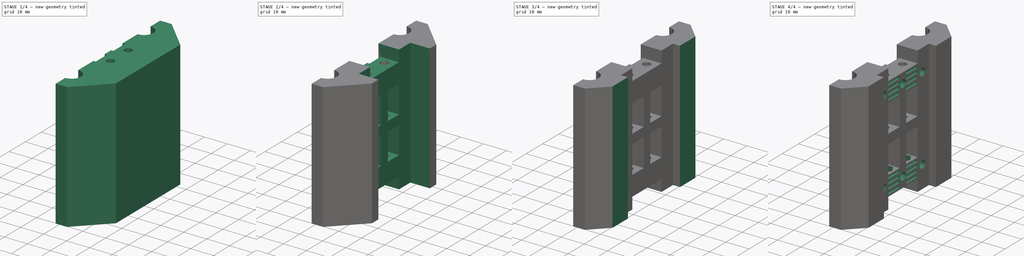
[diagram: build sequence overview — one tinted view per stage of 4, left to right]
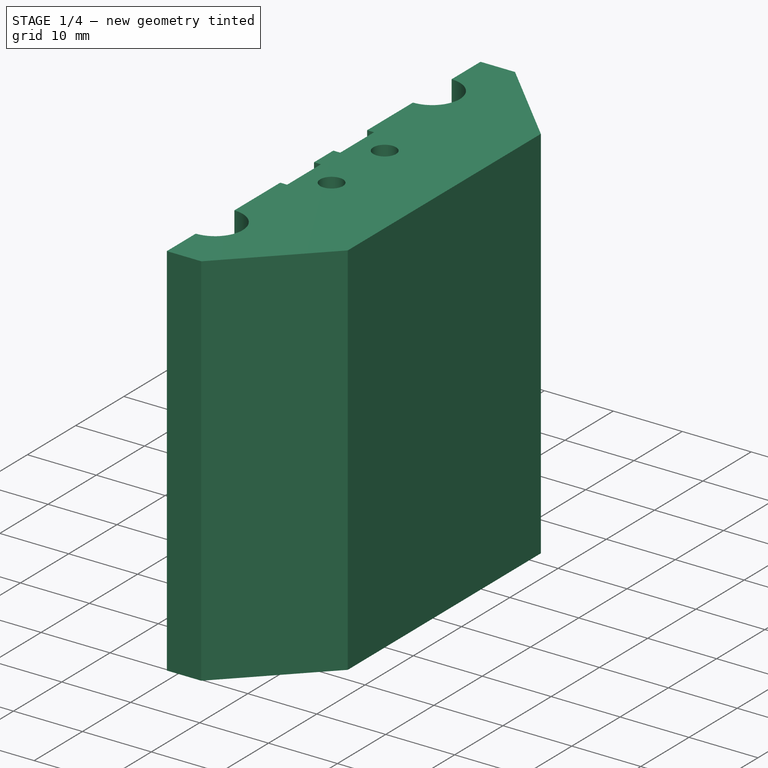
[diagram: stage 1 of 4 — iso view after this stage's code; geometry added in this stage tinted green]
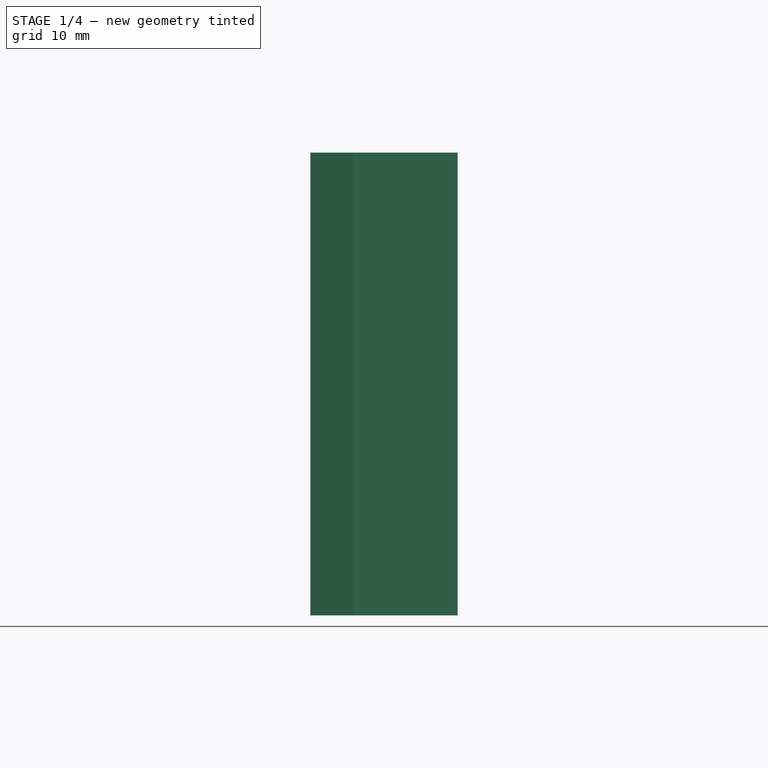
[diagram: stage 1 of 4 — front view after this stage's code; geometry added in this stage tinted green]
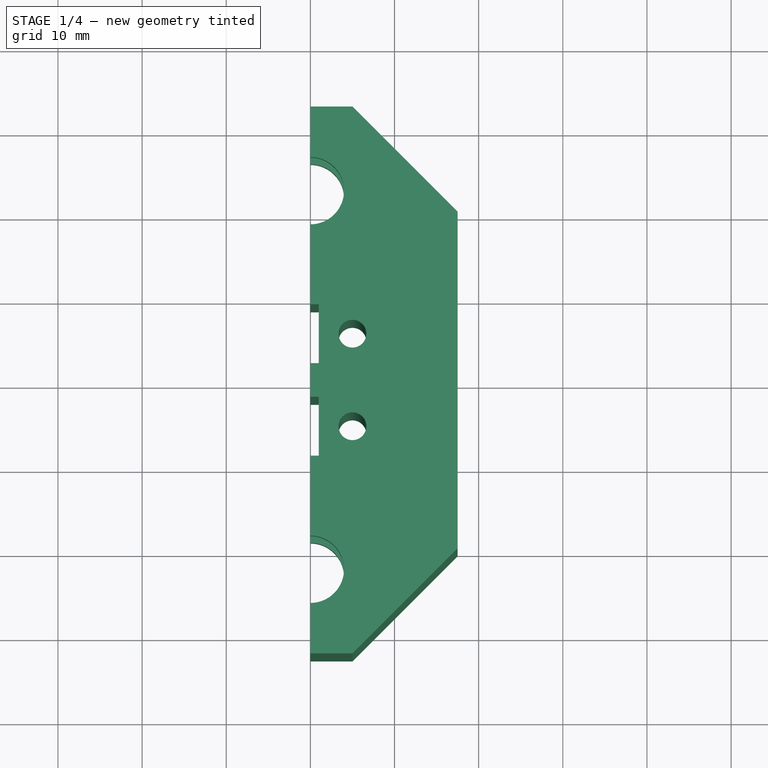
[diagram: stage 1 of 4 — top view after this stage's code; geometry added in this stage tinted green]
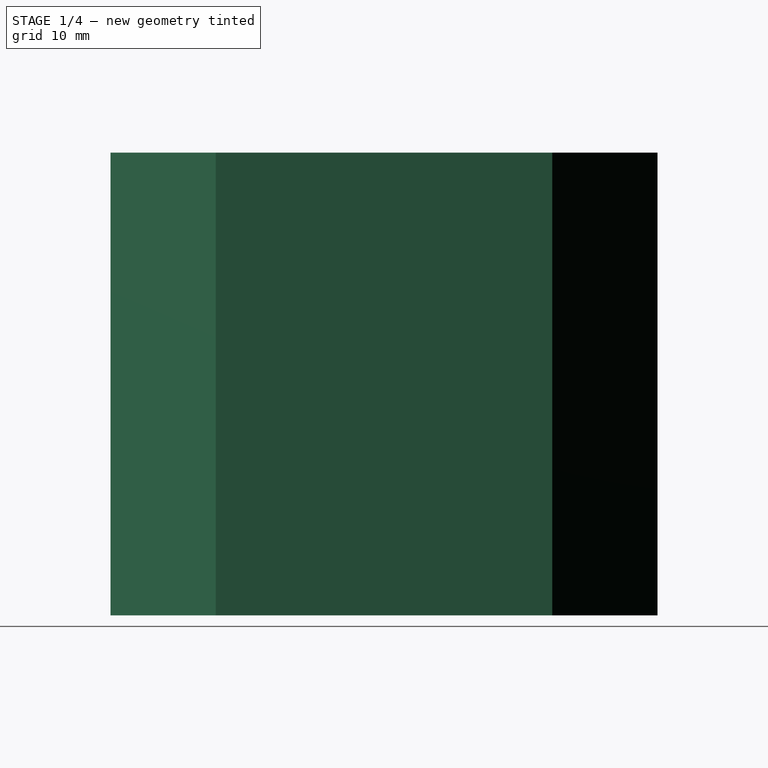
[diagram: stage 1 of 4 — right view after this stage's code; geometry added in this stage tinted green]
FCSTD DOCUMENT  (FreeCAD 0.19R20209 (Git))
Label: X-Axel-Printhead-Base_0100
License: Creative Commons Attribution
LicenseURL: http://creativecommons.org/licenses/by/4.0/
objects: Sketcher::SketchObject×11, PartDesign::Pocket×10, PartDesign::Plane×3, PartDesign::Pad×1, PartDesign::Body×1
note: 37 computed .brp shape members not serialized (recipe doc carries the construction recipe); baked Part::Feature solids carry a one-line shape summary decoded from their .brp

FEATURE [Sketcher::SketchObject] Sketch
  MapMode = 5
  Support = -> [XY_Plane]
  expr: Constraints[16] = 35 / 2
  sketch-geometry (14):
    g0: Circle [constr] CenterX=0 CenterY=22.5 CenterZ=0 NormalX=0 NormalY=0 NormalZ=1 AngleXU=0 Radius=7.6
    g1: Circle [constr] CenterX=0 CenterY=-22.5 CenterZ=0 NormalX=0 NormalY=0 NormalZ=1 AngleXU=0 Radius=7.6
    g2: LineSegment StartX=0 StartY=32.5 StartZ=0 EndX=5 EndY=32.5 EndZ=0
    g3: LineSegment StartX=5 StartY=32.5 StartZ=0 EndX=17.5 EndY=20 EndZ=0
    g4: LineSegment StartX=17.5 StartY=20 StartZ=0 EndX=17.5 EndY=-20 EndZ=0
    g5: LineSegment StartX=17.5 StartY=-20 StartZ=0 EndX=5 EndY=-32.5 EndZ=0
    g6: LineSegment StartX=5 StartY=-32.5 StartZ=0 EndX=0 EndY=-32.5 EndZ=0
    g7: ArcOfCircle CenterX=0 CenterY=22.5 CenterZ=0 NormalX=0 NormalY=0 NormalZ=1 AngleXU=0 Radius=4 StartAngle=4.71239 EndAngle=7.85398
    g8: ArcOfCircle CenterX=0 CenterY=-22.5 CenterZ=0 NormalX=0 NormalY=0 NormalZ=1 AngleXU=0 Radius=4 StartAngle=4.71239 EndAngle=7.85398
    g9: LineSegment StartX=0 StartY=32.5 StartZ=0 EndX=1.2e-15 EndY=26.5 EndZ=0
    g10: LineSegment StartX=-7e-16 StartY=18.5 StartZ=0 EndX=1.2e-15 EndY=-18.5 EndZ=0
    g11: LineSegment StartX=-7e-16 StartY=-26.5 StartZ=0 EndX=0 EndY=-32.5 EndZ=0
    g12: Circle CenterX=5 CenterY=5.5 CenterZ=0 NormalX=0 NormalY=0 NormalZ=1 AngleXU=0 Radius=1.65
    g13: Circle CenterX=5 CenterY=-5.5 CenterZ=0 NormalX=0 NormalY=0 NormalZ=1 AngleXU=0 Radius=1.65
  constraints (36):
    c: Symmetric(g1,g0,g-1)
    c: Equal(g0,g1)
    c: Diameter(g0) = 15.2
    c: PointOnObject(g0,g-2)
    c: DistanceY(g1,g0) = 45
    c: Horizontal(g2)
    c: Coincident(g2,g3)
    c: Coincident(g3,g4)
    c: Coincident(g4,g5)
    c: Coincident(g5,g6)
    c: Horizontal(g6)
    c: Symmetric(g2,g6,g-1)
    c: PointOnObject(g2,g-2)
    c: Equal(g6,g2)
    c: DistanceX(g2,g2) = 5
    c: Symmetric(g4,g3,g-1)
    c: DistanceX(g-1,g3) = 17.5
    c: DistanceY(g6,g2) = 65
    c: Equal(g8,g7)
    c: Diameter(g7) = 8
    c: Coincident(g7,g0)
    c: Coincident(g8,g1)
    c: Coincident(g11,g6)
    c: Coincident(g9,g2)
    c: Tangent(g9,g10)
    c: Coincident(g7,g10)
    c: Coincident(g7,g9)
    c: Tangent(g10,g11)
    c: Coincident(g8,g11)
    c: Coincident(g8,g10)
    c: Angle(g9,g3) = 0.785398
    c: Equal(g12,g13)
    c: Symmetric(g12,g13,g-1)
    c: DistanceY(g13,g12) = 11
    c: DistanceX(g-1,g12) = 5
    c: Diameter(g12) = 3.3
FEATURE [PartDesign::Pad] Pad
  Length = 55
  Length2 = 100
  Midplane = true
  Profile = -> Sketch
  Refine = true
  Type = 0
FEATURE [Sketcher::SketchObject] Sketch001
  ExternalGeometry = -> [Pad]
  MapMode = 5
  Support = -> [XY_Plane]
  sketch-geometry (2):
    g0: Circle CenterX=0 CenterY=22.5 CenterZ=0 NormalX=0 NormalY=0 NormalZ=1 AngleXU=0 Radius=7.65
    g1: Circle CenterX=0 CenterY=-22.5 CenterZ=0 NormalX=0 NormalY=0 NormalZ=1 AngleXU=0 Radius=7.65
  constraints (4):
    c: Equal(g1,g0)
    c: Diameter(g0) = 15.3
    c: Coincident(g-3,g0)
    c: Coincident(g1,g-4)
FEATURE [PartDesign::Pocket] Pocket
  BaseFeature = -> Pad
  Length = 45.4
  Length2 = 100
  Midplane = true
  Profile = -> Sketch001
  Refine = true
  Type = 0
FEATURE [Sketcher::SketchObject] Sketch002
  MapMode = 5
  Support = -> [XY_Plane]
  sketch-geometry (10):
    g0: LineSegment StartX=-1 StartY=9 StartZ=0 EndX=1 EndY=9 EndZ=0
    g1: LineSegment StartX=1 StartY=9 StartZ=0 EndX=1 EndY=2 EndZ=0
    g2: LineSegment StartX=1 StartY=2 StartZ=0 EndX=-1 EndY=2 EndZ=0
    g3: LineSegment StartX=-1 StartY=2 StartZ=0 EndX=-1 EndY=9 EndZ=0
    g4: LineSegment StartX=-1 StartY=-2 StartZ=0 EndX=1 EndY=-2 EndZ=0
    g5: LineSegment StartX=1 StartY=-2 StartZ=0 EndX=1 EndY=-9 EndZ=0
    g6: LineSegment StartX=1 StartY=-9 StartZ=0 EndX=-1 EndY=-9 EndZ=0
    g7: LineSegment StartX=-1 StartY=-9 StartZ=0 EndX=-1 EndY=-2 EndZ=0
    g8: GeomPoint X=0 Y=5.5 Z=0
    g9: GeomPoint X=0 Y=-5.5 Z=0
  constraints (25):
    c: Coincident(g0,g1)
    c: Coincident(g1,g2)
    c: Coincident(g2,g3)
    c: Coincident(g3,g0)
    c: Horizontal(g0)
    c: Horizontal(g2)
    c: Vertical(g1)
    c: Vertical(g3)
    c: Coincident(g4,g5)
    c: Coincident(g5,g6)
    c: Coincident(g6,g7)
    c: Coincident(g7,g4)
    c: Horizontal(g4)
    c: Horizontal(g6)
    c: Vertical(g5)
    c: Vertical(g7)
    c: Equal(g5,g1)
    c: DistanceY(g3,g3) = 7
    c: Symmetric(g2,g4,g-1)
    c: DistanceY(g4,g2) = 4
    c: Equal(g0,g4)
    c: DistanceX(g6,g6) = 2
    c: Symmetric(g5,g4,g9)
    c: Symmetric(g0,g1,g8)
    c: Vertical(g9,g-1)
FEATURE [PartDesign::Pocket] Pocket001
  BaseFeature = -> Pocket
  Length = 5
  Length2 = 100
  Midplane = true
  Profile = -> Sketch002
  Refine = true
  Type = 1
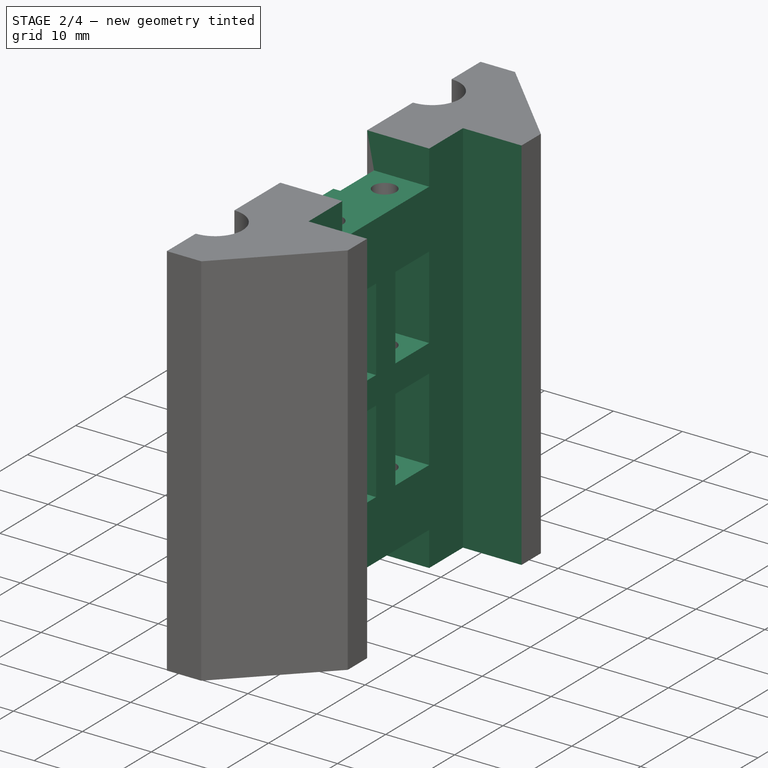
[diagram: stage 2 of 4 — iso view after this stage's code; geometry added in this stage tinted green]
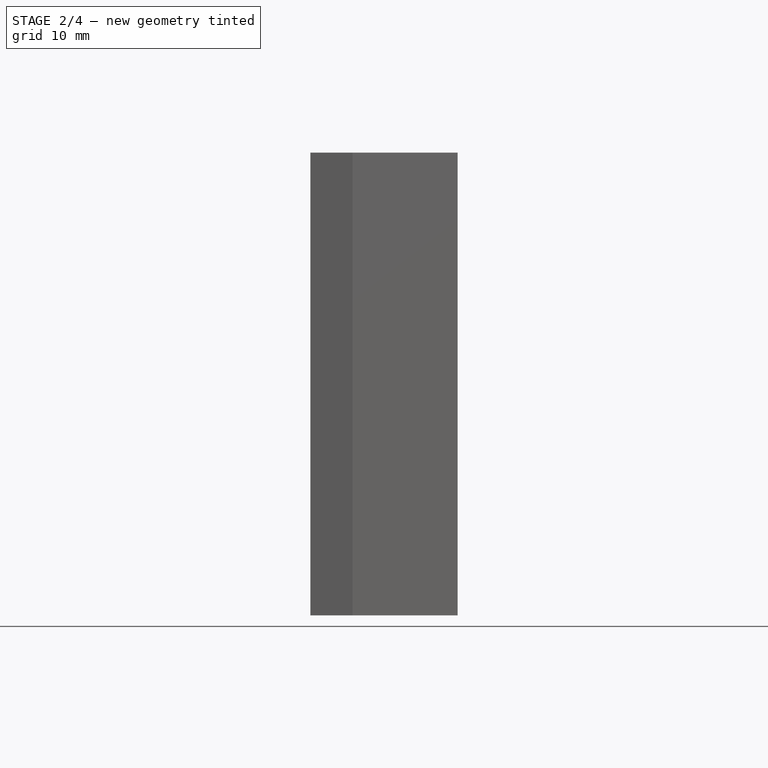
[diagram: stage 2 of 4 — front view after this stage's code; geometry added in this stage tinted green]
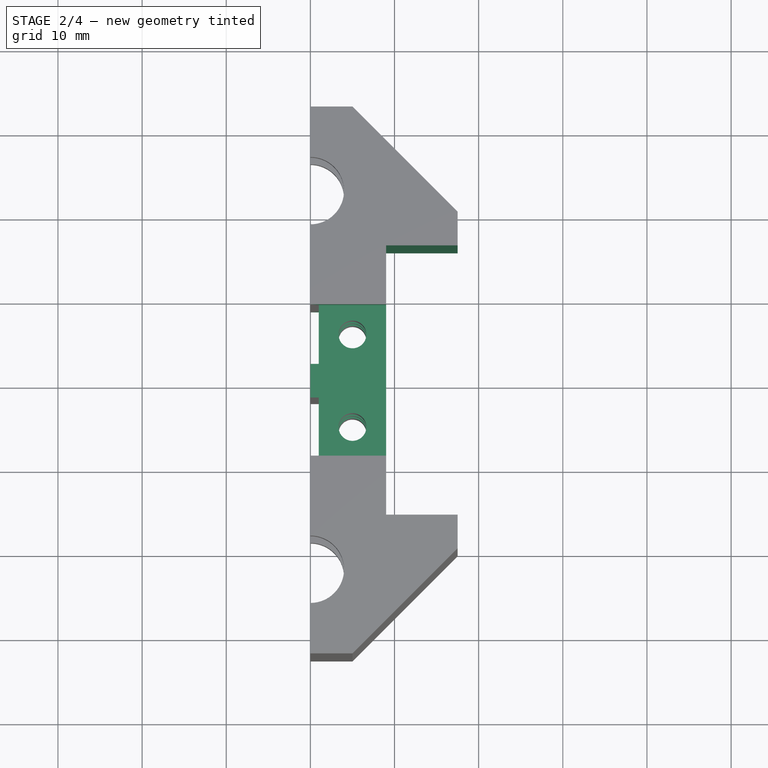
[diagram: stage 2 of 4 — top view after this stage's code; geometry added in this stage tinted green]
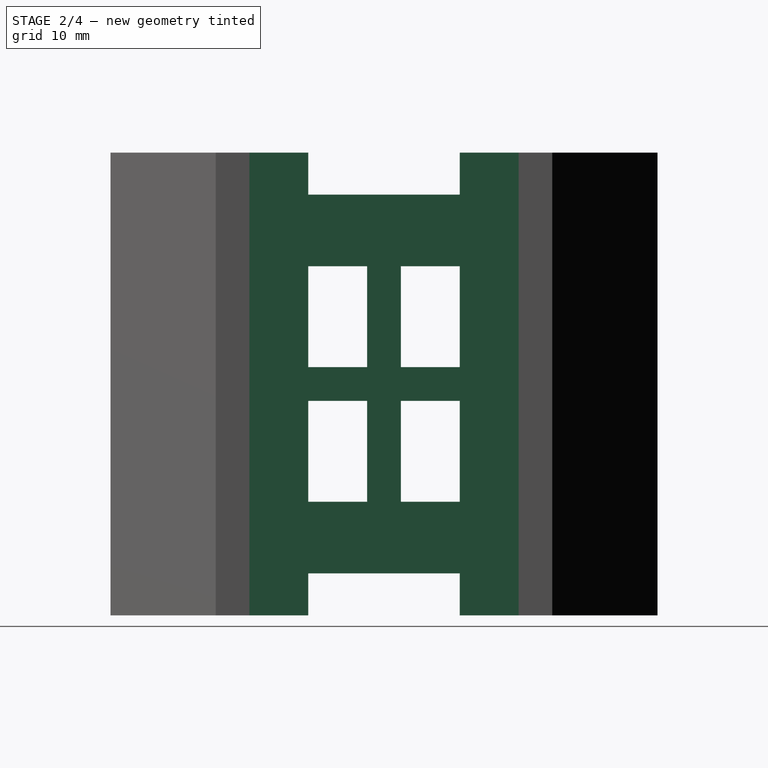
[diagram: stage 2 of 4 — right view after this stage's code; geometry added in this stage tinted green]
FEATURE [Sketcher::SketchObject] Sketch003
  MapMode = 5
  Placement = pos=(0,0,0) rot=(0.57735,0.57735,0.57735;2.0944rad)
  Support = -> [YZ_Plane]
  sketch-geometry (8):
    g0: LineSegment StartX=-9 StartY=27.5 StartZ=0 EndX=9 EndY=27.5 EndZ=0
    g1: LineSegment StartX=9 StartY=27.5 StartZ=0 EndX=9 EndY=22.5 EndZ=0
    g2: LineSegment StartX=9 StartY=22.5 StartZ=0 EndX=-9 EndY=22.5 EndZ=0
    g3: LineSegment StartX=-9 StartY=22.5 StartZ=0 EndX=-9 EndY=27.5 EndZ=0
    g4: LineSegment StartX=-9 StartY=-22.5 StartZ=0 EndX=9 EndY=-22.5 EndZ=0
    g5: LineSegment StartX=9 StartY=-22.5 StartZ=0 EndX=9 EndY=-27.5 EndZ=0
    g6: LineSegment StartX=9 StartY=-27.5 StartZ=0 EndX=-9 EndY=-27.5 EndZ=0
    g7: LineSegment StartX=-9 StartY=-27.5 StartZ=0 EndX=-9 EndY=-22.5 EndZ=0
  constraints (22):
    c: Coincident(g0,g1)
    c: Coincident(g1,g2)
    c: Coincident(g2,g3)
    c: Coincident(g3,g0)
    c: Horizontal(g0)
    c: Vertical(g1)
    c: Vertical(g3)
    c: Symmetric(g1,g2,g-2)
    c: DistanceX(g0,g0) = 18
    c: DistanceY(g1,g1) = 5
    c: Coincident(g4,g5)
    c: Coincident(g5,g6)
    c: Coincident(g6,g7)
    c: Coincident(g7,g4)
    c: Horizontal(g6)
    c: Vertical(g5)
    c: Vertical(g7)
    c: Symmetric(g4,g4,g-2)
    c: Equal(g4,g2)
    c: Equal(g5,g1)
    c: Symmetric(g1,g4,g-1)
    c: DistanceY(g4,g2) = 45
FEATURE [PartDesign::Pocket] Pocket002
  BaseFeature = -> Pocket001
  Length = 5
  Length2 = 100
  Midplane = true
  Profile = -> Sketch003
  Refine = true
  Type = 1
FEATURE [Sketcher::SketchObject] Sketch004
  MapMode = 5
  Support = -> [XY_Plane]
  sketch-geometry (4):
    g0: LineSegment StartX=9 StartY=16 StartZ=0 EndX=32.804 EndY=16 EndZ=0
    g1: LineSegment StartX=32.804 StartY=16 StartZ=0 EndX=32.804 EndY=-16 EndZ=0
    g2: LineSegment StartX=32.804 StartY=-16 StartZ=0 EndX=9 EndY=-16 EndZ=0
    g3: LineSegment StartX=9 StartY=-16 StartZ=0 EndX=9 EndY=16 EndZ=0
  constraints (10):
    c: Coincident(g0,g1)
    c: Coincident(g1,g2)
    c: Coincident(g2,g3)
    c: Coincident(g3,g0)
    c: Horizontal(g0)
    c: Horizontal(g2)
    c: Vertical(g3)
    c: DistanceX(g-1,g2) = 9
    c: DistanceY(g1,g1) = 32
    c: Symmetric(g0,g1,g-1)
FEATURE [PartDesign::Pocket] Pocket003
  BaseFeature = -> Pocket002
  Length = 5
  Length2 = 100
  Midplane = true
  Profile = -> Sketch004
  Refine = true
  Type = 1
FEATURE [Sketcher::SketchObject] Sketch005
  MapMode = 5
  Placement = pos=(0,0,0) rot=(0.57735,0.57735,0.57735;2.0944rad)
  Support = -> [YZ_Plane]
  sketch-geometry (16):
    g0: LineSegment StartX=-9 StartY=14 StartZ=0 EndX=-2 EndY=14 EndZ=0
    g1: LineSegment StartX=-2 StartY=14 StartZ=0 EndX=-2 EndY=2 EndZ=0
    g2: LineSegment StartX=-2 StartY=2 StartZ=0 EndX=-9 EndY=2 EndZ=0
    g3: LineSegment StartX=-9 StartY=2 StartZ=0 EndX=-9 EndY=14 EndZ=0
    g4: LineSegment StartX=-9 StartY=-2 StartZ=0 EndX=-2 EndY=-2 EndZ=0
    g5: LineSegment StartX=-2 StartY=-2 StartZ=0 EndX=-2 EndY=-14 EndZ=0
    g6: LineSegment StartX=-2 StartY=-14 StartZ=0 EndX=-9 EndY=-14 EndZ=0
    g7: LineSegment StartX=-9 StartY=-14 StartZ=0 EndX=-9 EndY=-2 EndZ=0
    g8: LineSegment StartX=2 StartY=14 StartZ=0 EndX=9 EndY=14 EndZ=0
    g9: LineSegment StartX=9 StartY=14 StartZ=0 EndX=9 EndY=2 EndZ=0
    g10: LineSegment StartX=9 StartY=2 StartZ=0 EndX=2 EndY=2 EndZ=0
    g11: LineSegment StartX=2 StartY=2 StartZ=0 EndX=2 EndY=14 EndZ=0
    g12: LineSegment StartX=2 StartY=-2 StartZ=0 EndX=9 EndY=-2 EndZ=0
    g13: LineSegment StartX=9 StartY=-2 StartZ=0 EndX=9 EndY=-14 EndZ=0
    g14: LineSegment StartX=9 StartY=-14 StartZ=0 EndX=2 EndY=-14 EndZ=0
    g15: LineSegment StartX=2 StartY=-14 StartZ=0 EndX=2 EndY=-2 EndZ=0
  constraints (45):
    c: Coincident(g0,g1)
    c: Coincident(g1,g2)
    c: Coincident(g2,g3)
    c: Coincident(g3,g0)
    c: Horizontal(g0)
    c: Horizontal(g2)
    c: Vertical(g1)
    c: Vertical(g3)
    c: Coincident(g4,g5)
    c: Coincident(g5,g6)
    c: Coincident(g6,g7)
    c: Coincident(g7,g4)
    c: Horizontal(g4)
    c: Horizontal(g6)
    c: Vertical(g5)
    c: Vertical(g7)
    c: Coincident(g8,g9)
    c: Coincident(g9,g10)
    c: Coincident(g10,g11)
    c: Coincident(g11,g8)
    c: Horizontal(g8)
    c: Horizontal(g10)
    c: Vertical(g9)
    c: Vertical(g11)
    c: Coincident(g12,g13)
    c: Coincident(g13,g14)
    c: Coincident(g14,g15)
    c: Coincident(g15,g12)
    c: Horizontal(g12)
    c: Horizontal(g14)
    c: Vertical(g13)
    c: Vertical(g15)
    c: Equal(g5,g13)
    c: Equal(g13,g9)
    c: Equal(g9,g1)
    c: Equal(g0,g8)
    c: Equal(g8,g12)
    c: Equal(g12,g4)
    c: DistanceX(g0,g0) = 7
    c: DistanceY(g3,g3) = 12
    c: Symmetric(g1,g4,g-1)
    c: Symmetric(g10,g12,g-1)
    c: Symmetric(g12,g4,g-2)
    c: DistanceY(g4,g1) = 4
    c: DistanceX(g1,g10) = 4
FEATURE [PartDesign::Pocket] Pocket004
  BaseFeature = -> Pocket003
  Length = 5
  Length2 = 100
  Profile = -> Sketch005
  Refine = true
  Reversed = true
  Type = 1
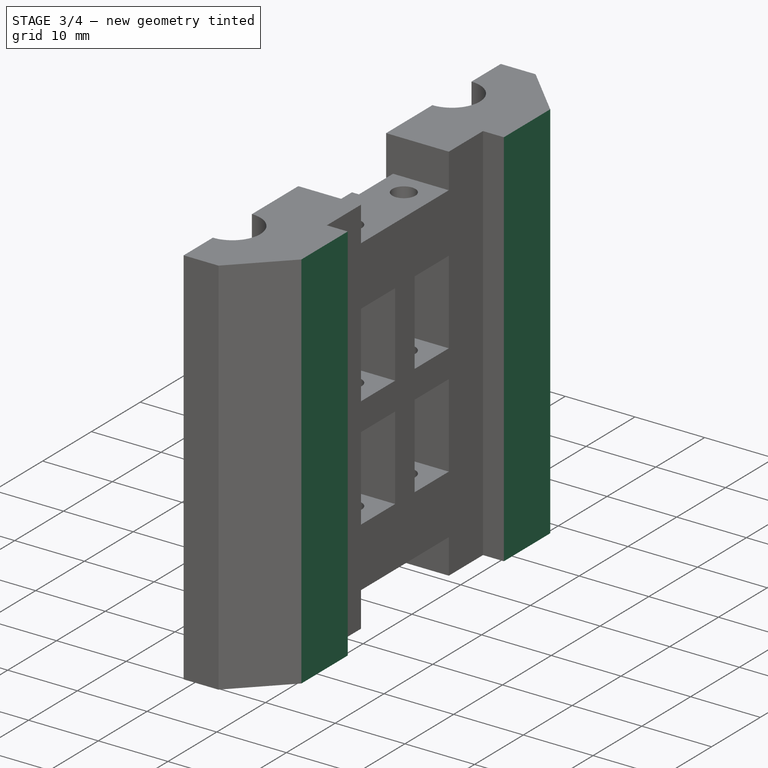
[diagram: stage 3 of 4 — iso view after this stage's code; geometry added in this stage tinted green]
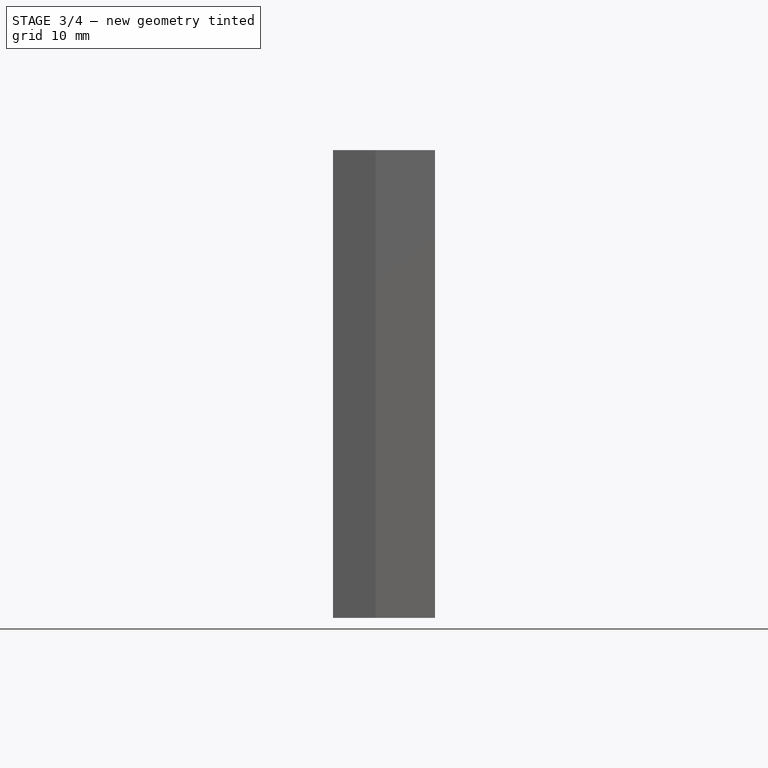
[diagram: stage 3 of 4 — front view after this stage's code; geometry added in this stage tinted green]
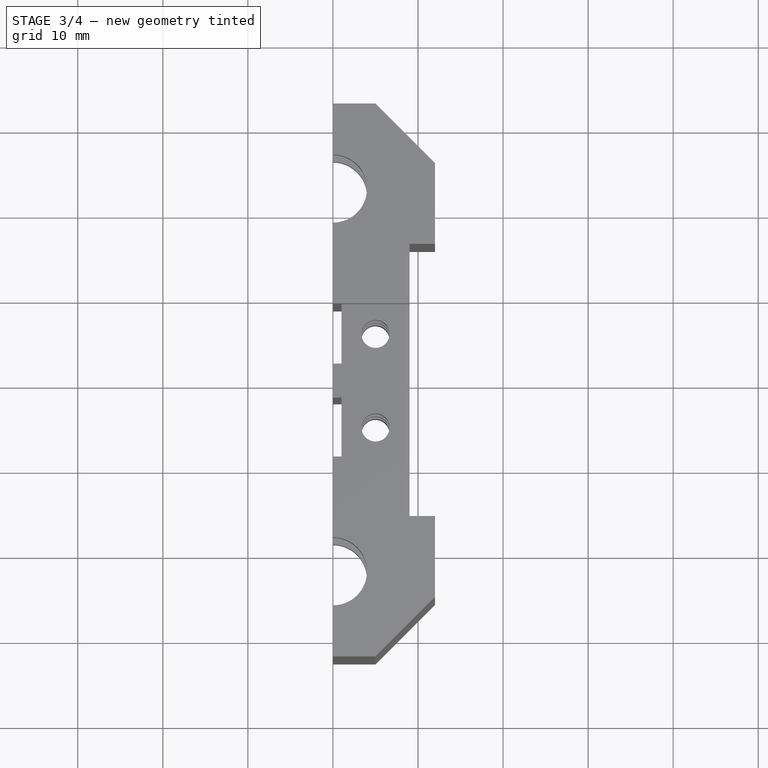
[diagram: stage 3 of 4 — top view after this stage's code; geometry added in this stage tinted green]
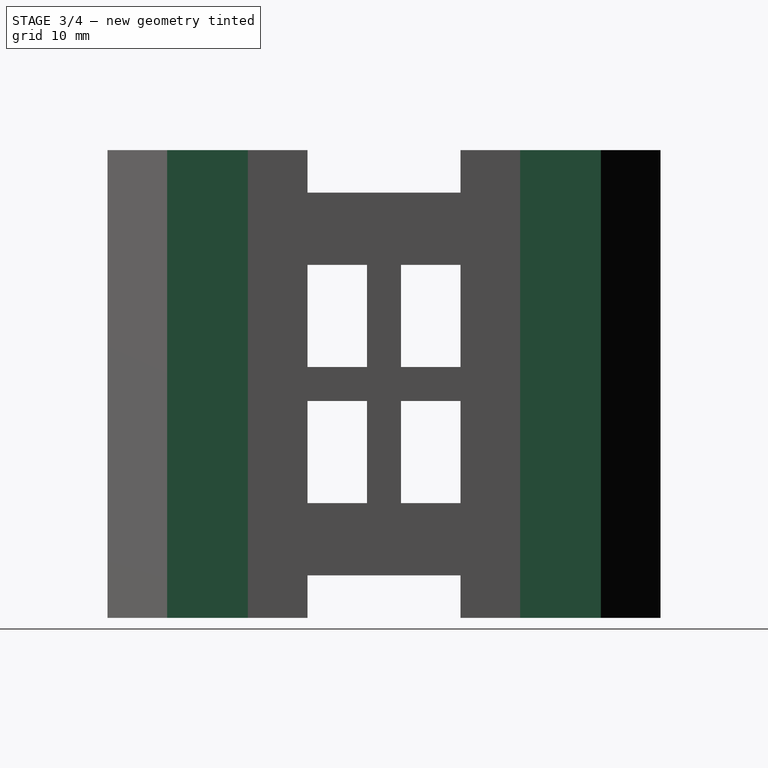
[diagram: stage 3 of 4 — right view after this stage's code; geometry added in this stage tinted green]
FEATURE [PartDesign::Plane] DatumPlane
  AttachmentOffset = pos=(0,0,14) rot=(0,0,1;0rad)
  Length = 61.4018
  MapMode = 5
  Placement = pos=(0,0,14) rot=(0,0,1;0rad)
  ResizeMode = 0
  Support = -> [XY_Plane]
  Width = 76.4018
FEATURE [Sketcher::SketchObject] Sketch006
  ExternalGeometry = -> [Pocket004]
  MapMode = 5
  Placement = pos=(0,0,14) rot=(0,0,1;0rad)
  Support = -> [DatumPlane]
  sketch-geometry (14):
    g0: LineSegment StartX=8.23316 StartY=5.5 StartZ=0 EndX=6.61658 EndY=8.3 EndZ=0
    g1: LineSegment StartX=6.61658 StartY=8.3 StartZ=0 EndX=3.38342 EndY=8.3 EndZ=0
    g2: LineSegment StartX=3.38342 StartY=8.3 StartZ=0 EndX=1.76684 EndY=5.5 EndZ=0
    g3: LineSegment StartX=1.76684 StartY=5.5 StartZ=0 EndX=3.38342 EndY=2.7 EndZ=0
    g4: LineSegment StartX=3.38342 StartY=2.7 StartZ=0 EndX=6.61658 EndY=2.7 EndZ=0
    g5: LineSegment StartX=6.61658 StartY=2.7 StartZ=0 EndX=8.23316 EndY=5.5 EndZ=0
    g6: Circle [constr] CenterX=5 CenterY=5.5 CenterZ=0 NormalX=0 NormalY=0 NormalZ=1 AngleXU=0 Radius=3.23316
    g7: LineSegment StartX=8.23316 StartY=-5.5 StartZ=0 EndX=6.61658 EndY=-2.7 EndZ=0
    g8: LineSegment StartX=6.61658 StartY=-2.7 StartZ=0 EndX=3.38342 EndY=-2.7 EndZ=0
    g9: LineSegment StartX=3.38342 StartY=-2.7 StartZ=0 EndX=1.76684 EndY=-5.5 EndZ=0
    g10: LineSegment StartX=1.76684 StartY=-5.5 StartZ=0 EndX=3.38342 EndY=-8.3 EndZ=0
    g11: LineSegment StartX=3.38342 StartY=-8.3 StartZ=0 EndX=6.61658 EndY=-8.3 EndZ=0
    g12: LineSegment StartX=6.61658 StartY=-8.3 StartZ=0 EndX=8.23316 EndY=-5.5 EndZ=0
    g13: Circle [constr] CenterX=5 CenterY=-5.5 CenterZ=0 NormalX=0 NormalY=0 NormalZ=1 AngleXU=0 Radius=3.23316
  constraints (32):
    c: Coincident(g0,g1)
    c: Coincident(g1,g2)
    c: Coincident(g2,g3)
    c: Coincident(g3,g4)
    c: Coincident(g4,g5)
    c: Coincident(g5,g0)
    c: Equal(g0, g1-g5) x5
    c: PointOnObject(g0,g6)
    c: PointOnObject(g1,g6)
    c: PointOnObject(g2,g6)
    c: PointOnObject(g3,g6)
    c: PointOnObject(g4,g6)
    c: PointOnObject(g5,g6)
    c: Coincident(g7,g8)
    c: Coincident(g8,g9)
    c: Coincident(g9,g10)
    c: Coincident(g10,g11)
    c: Coincident(g11,g12)
    c: Coincident(g12,g7)
    c: Equal(g7, g8-g12) x5
    c: PointOnObject(g7,g13)
    c: PointOnObject(g8,g13)
    c: PointOnObject(g9,g13)
    c: PointOnObject(g10,g13)
    c: PointOnObject(g11,g13)
    c: PointOnObject(g12,g13)
    c: Coincident(g6,g-3)
    c: Coincident(g13,g-4)
    c: Horizontal(g0,g2)
    c: Horizontal(g9,g7)
    c: Equal(g13,g6)
    c: Distance(g7,g11) = 5.6
FEATURE [PartDesign::Pocket] Pocket005
  BaseFeature = -> Pocket004
  Length = 3
  Length2 = 100
  Profile = -> Sketch006
  Refine = true
  Reversed = true
  Type = 0
FEATURE [Sketcher::SketchObject] Sketch007
  MapMode = 5
  Support = -> [XY_Plane]
  sketch-geometry (4):
    g0: LineSegment StartX=12 StartY=31.3887 StartZ=0 EndX=36.4719 EndY=31.3887 EndZ=0
    g1: LineSegment StartX=36.4719 StartY=31.3887 StartZ=0 EndX=36.4719 EndY=-30.3931 EndZ=0
    g2: LineSegment StartX=36.4719 StartY=-30.3931 StartZ=0 EndX=12 EndY=-30.3931 EndZ=0
    g3: LineSegment StartX=12 StartY=-30.3931 StartZ=0 EndX=12 EndY=31.3887 EndZ=0
  constraints (9):
    c: Coincident(g0,g1)
    c: Coincident(g1,g2)
    c: Coincident(g2,g3)
    c: Coincident(g3,g0)
    c: Horizontal(g0)
    c: Horizontal(g2)
    c: Vertical(g1)
    c: Vertical(g3)
    c: DistanceX(g-1,g2) = 12
FEATURE [PartDesign::Pocket] Pocket006
  BaseFeature = -> Pocket005
  Length = 5
  Length2 = 100
  Midplane = true
  Profile = -> Sketch007
  Refine = true
  Type = 1
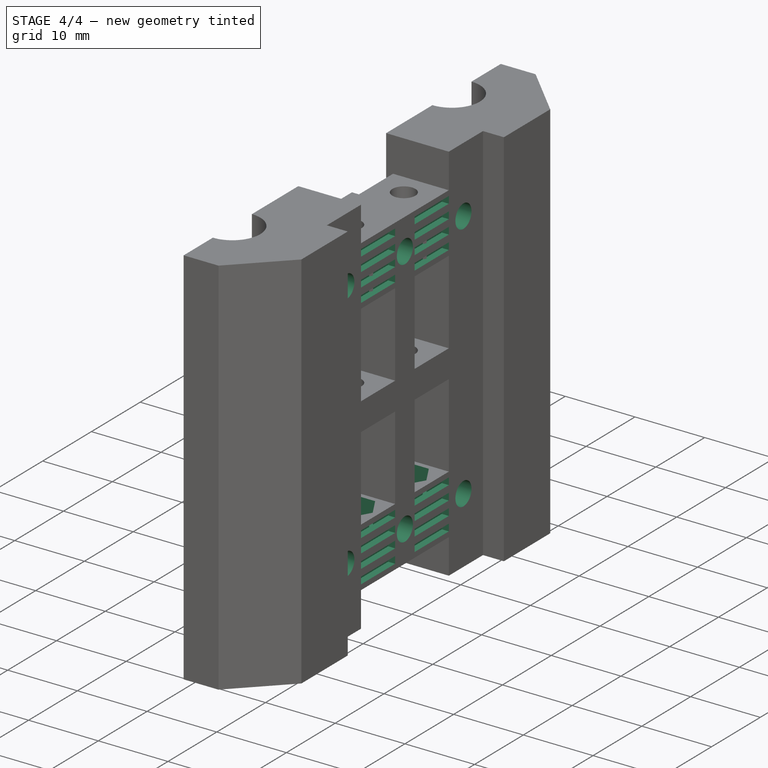
[diagram: stage 4 of 4 — iso view after this stage's code; geometry added in this stage tinted green]
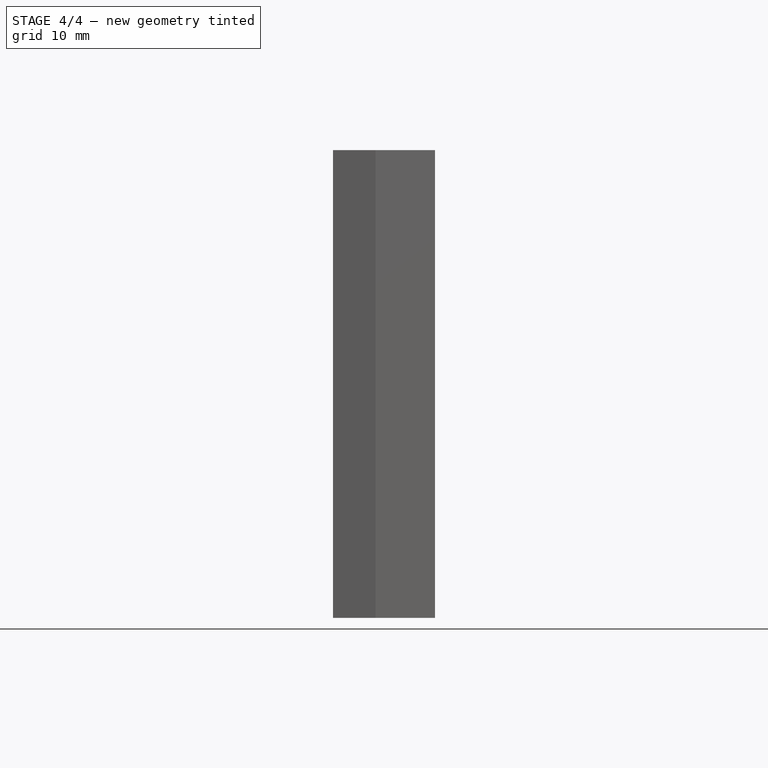
[diagram: stage 4 of 4 — front view after this stage's code; geometry added in this stage tinted green]
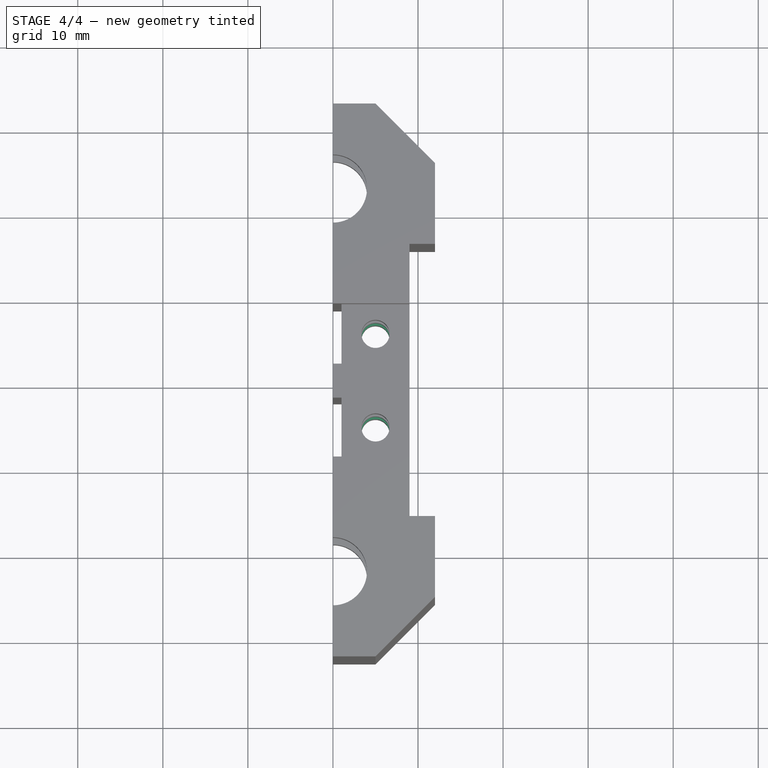
[diagram: stage 4 of 4 — top view after this stage's code; geometry added in this stage tinted green]
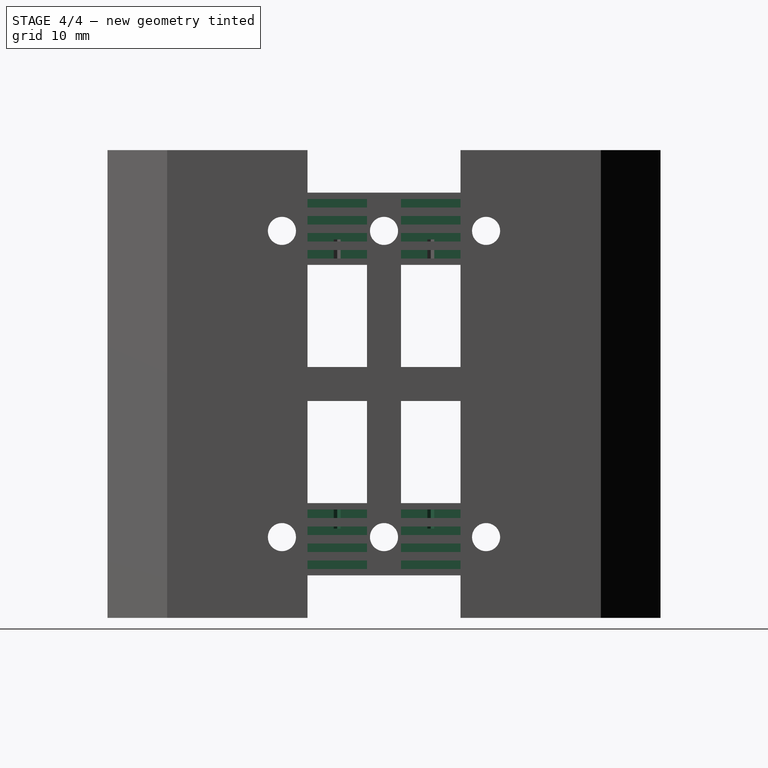
[diagram: stage 4 of 4 — right view after this stage's code; geometry added in this stage tinted green]
FEATURE [Sketcher::SketchObject] Sketch008
  MapMode = 5
  Placement = pos=(0,0,0) rot=(0.57735,0.57735,0.57735;2.0944rad)
  Support = -> [YZ_Plane]
  sketch-geometry (6):
    g0: Circle CenterX=12 CenterY=18 CenterZ=0 NormalX=0 NormalY=0 NormalZ=1 AngleXU=0 Radius=1.65
    g1: Circle CenterX=-12 CenterY=18 CenterZ=0 NormalX=0 NormalY=0 NormalZ=1 AngleXU=0 Radius=1.65
    g2: Circle CenterX=0 CenterY=18 CenterZ=0 NormalX=0 NormalY=0 NormalZ=1 AngleXU=0 Radius=1.65
    g3: Circle CenterX=0 CenterY=-18 CenterZ=0 NormalX=0 NormalY=0 NormalZ=1 AngleXU=0 Radius=1.65
    g4: Circle CenterX=-12 CenterY=-18 CenterZ=0 NormalX=0 NormalY=0 NormalZ=1 AngleXU=0 Radius=1.65
    g5: Circle CenterX=12 CenterY=-18 CenterZ=0 NormalX=0 NormalY=0 NormalZ=1 AngleXU=0 Radius=1.65
  constraints (16):
    c: Diameter(g0) = 3.3
    c: DistanceX(g-1,g0) = 12
    c: DistanceY(g-1,g0) = 18
    c: Equal(g1,g2)
    c: Equal(g2,g0)
    c: PointOnObject(g2,g-2)
    c: Horizontal(g2,g0)
    c: Symmetric(g1,g0,g2)
    c: Equal(g5,g3)
    c: Equal(g3,g4)
    c: Equal(g4,g0)
    c: Horizontal(g4,g3)
    c: Horizontal(g3,g5)
    c: Vertical(g5,g0)
    c: Vertical(g4,g1)
    c: Symmetric(g3,g2,g-1)
FEATURE [PartDesign::Pocket] Pocket007
  BaseFeature = -> Pocket006
  Length = 5
  Length2 = 100
  Profile = -> Sketch008
  Refine = true
  Reversed = true
  Type = 1
FEATURE [PartDesign::Plane] DatumPlane001
  AttachmentOffset = pos=(0,0,-14) rot=(0,0,1;0rad)
  Length = 61.4018
  MapMode = 5
  Placement = pos=(0,0,-14) rot=(0,0,1;0rad)
  ResizeMode = 0
  Support = -> [XY_Plane]
  Width = 76.4018
FEATURE [Sketcher::SketchObject] Sketch009
  ExternalGeometry = -> [Pocket007]
  MapMode = 5
  Placement = pos=(0,0,-14) rot=(0,0,1;0rad)
  Support = -> [DatumPlane001]
  sketch-geometry (14):
    g0: LineSegment StartX=3.38342 StartY=2.7 StartZ=0 EndX=6.61658 EndY=2.7 EndZ=0
    g1: LineSegment StartX=6.61658 StartY=2.7 StartZ=0 EndX=8.23316 EndY=5.5 EndZ=0
    g2: LineSegment StartX=8.23316 StartY=5.5 StartZ=0 EndX=6.61658 EndY=8.3 EndZ=0
    g3: LineSegment StartX=6.61658 StartY=8.3 StartZ=0 EndX=3.38342 EndY=8.3 EndZ=0
    g4: LineSegment StartX=3.38342 StartY=8.3 StartZ=0 EndX=1.76684 EndY=5.5 EndZ=0
    g5: LineSegment StartX=1.76684 StartY=5.5 StartZ=0 EndX=3.38342 EndY=2.7 EndZ=0
    g6: Circle [constr] CenterX=5 CenterY=5.5 CenterZ=0 NormalX=0 NormalY=0 NormalZ=1 AngleXU=0 Radius=3.23316
    g7: LineSegment StartX=8.23316 StartY=-5.5 StartZ=0 EndX=6.61658 EndY=-2.7 EndZ=0
    g8: LineSegment StartX=6.61658 StartY=-2.7 StartZ=0 EndX=3.38342 EndY=-2.7 EndZ=0
    g9: LineSegment StartX=3.38342 StartY=-2.7 StartZ=0 EndX=1.76684 EndY=-5.5 EndZ=0
    g10: LineSegment StartX=1.76684 StartY=-5.5 StartZ=0 EndX=3.38342 EndY=-8.3 EndZ=0
    g11: LineSegment StartX=3.38342 StartY=-8.3 StartZ=0 EndX=6.61658 EndY=-8.3 EndZ=0
    g12: LineSegment StartX=6.61658 StartY=-8.3 StartZ=0 EndX=8.23316 EndY=-5.5 EndZ=0
    g13: Circle [constr] CenterX=5 CenterY=-5.5 CenterZ=0 NormalX=0 NormalY=0 NormalZ=1 AngleXU=0 Radius=3.23316
  constraints (32):
    c: Coincident(g0,g1)
    c: Coincident(g1,g2)
    c: Coincident(g2,g3)
    c: Coincident(g3,g4)
    c: Coincident(g4,g5)
    c: Coincident(g5,g0)
    c: Equal(g0, g1-g5) x5
    c: PointOnObject(g0,g6)
    c: PointOnObject(g1,g6)
    c: PointOnObject(g2,g6)
    c: PointOnObject(g3,g6)
    c: PointOnObject(g4,g6)
    c: PointOnObject(g5,g6)
    c: Coincident(g7,g8)
    c: Coincident(g8,g9)
    c: Coincident(g9,g10)
    c: Coincident(g10,g11)
    c: Coincident(g11,g12)
    c: Coincident(g12,g7)
    c: Equal(g7, g8-g12) x5
    c: PointOnObject(g7,g13)
    c: PointOnObject(g8,g13)
    c: PointOnObject(g9,g13)
    c: PointOnObject(g10,g13)
    c: PointOnObject(g11,g13)
    c: PointOnObject(g12,g13)
    c: Equal(g13,g6)
    c: Coincident(g6,g-3)
    c: Horizontal(g6,g4)
    c: Coincident(g13,g-4)
    c: Horizontal(g13,g9)
    c: Distance(g10,g8) = 5.6
FEATURE [PartDesign::Pocket] Pocket008
  BaseFeature = -> Pocket007
  Length = 3
  Length2 = 100
  Profile = -> Sketch009
  Refine = true
  Type = 0
FEATURE [PartDesign::Plane] DatumPlane002
  AttachmentOffset = pos=(0,0,9) rot=(0,0,1;0rad)
  Length = 76.9583
  MapMode = 5
  Placement = pos=(9,-2e-15,2e-15) rot=(0.57735,0.57735,0.57735;2.0944rad)
  ResizeMode = 0
  Support = -> [YZ_Plane]
  Width = 66.9583
FEATURE [Sketcher::SketchObject] Sketch010
  ExternalGeometry = -> [Pocket008]
  MapMode = 5
  Placement = pos=(9,-2e-15,2e-15) rot=(0.57735,0.57735,0.57735;2.0944rad)
  Support = -> [DatumPlane002]
  sketch-geometry (64):
    g0: LineSegment StartX=-9 StartY=15.75 StartZ=0 EndX=-2 EndY=15.75 EndZ=0
    g1: LineSegment StartX=-2 StartY=15.75 StartZ=0 EndX=-2 EndY=14.75 EndZ=0
    g2: LineSegment StartX=-2 StartY=14.75 StartZ=0 EndX=-9 EndY=14.75 EndZ=0
    g3: LineSegment StartX=-9 StartY=14.75 StartZ=0 EndX=-9 EndY=15.75 EndZ=0
    g4: LineSegment StartX=-9 StartY=17.75 StartZ=0 EndX=-2 EndY=17.75 EndZ=0
    g5: LineSegment StartX=-2 StartY=17.75 StartZ=0 EndX=-2 EndY=16.75 EndZ=0
    g6: LineSegment StartX=-2 StartY=16.75 StartZ=0 EndX=-9 EndY=16.75 EndZ=0
    g7: LineSegment StartX=-9 StartY=16.75 StartZ=0 EndX=-9 EndY=17.75 EndZ=0
    g8: LineSegment StartX=-9 StartY=19.75 StartZ=0 EndX=-2 EndY=19.75 EndZ=0
    g9: LineSegment StartX=-2 StartY=19.75 StartZ=0 EndX=-2 EndY=18.75 EndZ=0
    g10: LineSegment StartX=-2 StartY=18.75 StartZ=0 EndX=-9 EndY=18.75 EndZ=0
    g11: LineSegment StartX=-9 StartY=18.75 StartZ=0 EndX=-9 EndY=19.75 EndZ=0
    g12: LineSegment StartX=-9 StartY=21.75 StartZ=0 EndX=-2 EndY=21.75 EndZ=0
    g13: LineSegment StartX=-2 StartY=21.75 StartZ=0 EndX=-2 EndY=20.75 EndZ=0
    g14: LineSegment StartX=-2 StartY=20.75 StartZ=0 EndX=-9 EndY=20.75 EndZ=0
    g15: LineSegment StartX=-9 StartY=20.75 StartZ=0 EndX=-9 EndY=21.75 EndZ=0
    g16: LineSegment StartX=2 StartY=15.75 StartZ=0 EndX=9 EndY=15.75 EndZ=0
    g17: LineSegment StartX=9 StartY=15.75 StartZ=0 EndX=9 EndY=14.75 EndZ=0
    g18: LineSegment StartX=9 StartY=14.75 StartZ=0 EndX=2 EndY=14.75 EndZ=0
    g19: LineSegment StartX=2 StartY=14.75 StartZ=0 EndX=2 EndY=15.75 EndZ=0
    g20: LineSegment StartX=2 StartY=17.75 StartZ=0 EndX=9 EndY=17.75 EndZ=0
    g21: LineSegment StartX=9 StartY=17.75 StartZ=0 EndX=9 EndY=16.75 EndZ=0
    g22: LineSegment StartX=9 StartY=16.75 StartZ=0 EndX=2 EndY=16.75 EndZ=0
    g23: LineSegment StartX=2 StartY=16.75 StartZ=0 EndX=2 EndY=17.75 EndZ=0
    g24: LineSegment StartX=2 StartY=19.75 StartZ=0 EndX=9 EndY=19.75 EndZ=0
    g25: LineSegment StartX=9 StartY=19.75 StartZ=0 EndX=9 EndY=18.75 EndZ=0
    g26: LineSegment StartX=9 StartY=18.75 StartZ=0 EndX=2 EndY=18.75 EndZ=0
    g27: LineSegment StartX=2 StartY=18.75 StartZ=0 EndX=2 EndY=19.75 EndZ=0
    g28: LineSegment StartX=2 StartY=21.75 StartZ=0 EndX=9 EndY=21.75 EndZ=0
    g29: LineSegment StartX=9 StartY=21.75 StartZ=0 EndX=9 EndY=20.75 EndZ=0
    g30: LineSegment StartX=9 StartY=20.75 StartZ=0 EndX=2 EndY=20.75 EndZ=0
    g31: LineSegment StartX=2 StartY=20.75 StartZ=0 EndX=2 EndY=21.75 EndZ=0
    g32: LineSegment StartX=-9 StartY=-20.75 StartZ=0 EndX=-2 EndY=-20.75 EndZ=0
    g33: LineSegment StartX=-2 StartY=-20.75 StartZ=0 EndX=-2 EndY=-21.75 EndZ=0
    g34: LineSegment StartX=-2 StartY=-21.75 StartZ=0 EndX=-9 EndY=-21.75 EndZ=0
    g35: LineSegment StartX=-9 StartY=-21.75 StartZ=0 EndX=-9 EndY=-20.75 EndZ=0
    g36: LineSegment StartX=-9 StartY=-18.75 StartZ=0 EndX=-2 EndY=-18.75 EndZ=0
    g37: LineSegment StartX=-2 StartY=-18.75 StartZ=0 EndX=-2 EndY=-19.75 EndZ=0
    g38: LineSegment StartX=-2 StartY=-19.75 StartZ=0 EndX=-9 EndY=-19.75 EndZ=0
    g39: LineSegment StartX=-9 StartY=-19.75 StartZ=0 EndX=-9 EndY=-18.75 EndZ=0
    g40: LineSegment StartX=-9 StartY=-16.75 StartZ=0 EndX=-2 EndY=-16.75 EndZ=0
    g41: LineSegment StartX=-2 StartY=-16.75 StartZ=0 EndX=-2 EndY=-17.75 EndZ=0
    g42: LineSegment StartX=-2 StartY=-17.75 StartZ=0 EndX=-9 EndY=-17.75 EndZ=0
    g43: LineSegment StartX=-9 StartY=-17.75 StartZ=0 EndX=-9 EndY=-16.75 EndZ=0
    g44: LineSegment StartX=-9 StartY=-14.75 StartZ=0 EndX=-2 EndY=-14.75 EndZ=0
    g45: LineSegment StartX=-2 StartY=-14.75 StartZ=0 EndX=-2 EndY=-15.75 EndZ=0
    g46: LineSegment StartX=-2 StartY=-15.75 StartZ=0 EndX=-9 EndY=-15.75 EndZ=0
    g47: LineSegment StartX=-9 StartY=-15.75 StartZ=0 EndX=-9 EndY=-14.75 EndZ=0
    g48: LineSegment StartX=2 StartY=-20.75 StartZ=0 EndX=9 EndY=-20.75 EndZ=0
    g49: LineSegment StartX=9 StartY=-20.75 StartZ=0 EndX=9 EndY=-21.75 EndZ=0
    g50: LineSegment StartX=9 StartY=-21.75 StartZ=0 EndX=2 EndY=-21.75 EndZ=0
    g51: LineSegment StartX=2 StartY=-21.75 StartZ=0 EndX=2 EndY=-20.75 EndZ=0
    g52: LineSegment StartX=2 StartY=-18.75 StartZ=0 EndX=9 EndY=-18.75 EndZ=0
    g53: LineSegment StartX=9 StartY=-18.75 StartZ=0 EndX=9 EndY=-19.75 EndZ=0
    g54: LineSegment StartX=9 StartY=-19.75 StartZ=0 EndX=2 EndY=-19.75 EndZ=0
    g55: LineSegment StartX=2 StartY=-19.75 StartZ=0 EndX=2 EndY=-18.75 EndZ=0
    g56: LineSegment StartX=2 StartY=-16.75 StartZ=0 EndX=9 EndY=-16.75 EndZ=0
    g57: LineSegment StartX=9 StartY=-16.75 StartZ=0 EndX=9 EndY=-17.75 EndZ=0
    g58: LineSegment StartX=9 StartY=-17.75 StartZ=0 EndX=2 EndY=-17.75 EndZ=0
    g59: LineSegment StartX=2 StartY=-17.75 StartZ=0 EndX=2 EndY=-16.75 EndZ=0
    g60: LineSegment StartX=2 StartY=-14.75 StartZ=0 EndX=9 EndY=-14.75 EndZ=0
    g61: LineSegment StartX=9 StartY=-14.75 StartZ=0 EndX=9 EndY=-15.75 EndZ=0
    g62: LineSegment StartX=9 StartY=-15.75 StartZ=0 EndX=2 EndY=-15.75 EndZ=0
    g63: LineSegment StartX=2 StartY=-15.75 StartZ=0 EndX=2 EndY=-14.75 EndZ=0
  constraints (192):
    c: Coincident(g0,g1)
    c: Coincident(g1,g2)
    c: Coincident(g2,g3)
    c: Coincident(g3,g0)
    c: Horizontal(g0)
    c: Horizontal(g2)
    c: Vertical(g1)
    c: Vertical(g3)
    c: Coincident(g4,g5)
    c: Coincident(g5,g6)
    c: Coincident(g6,g7)
    c: Coincident(g7,g4)
    c: Horizontal(g4)
    c: Horizontal(g6)
    c: Vertical(g5)
    c: Vertical(g7)
    c: Coincident(g8,g9)
    c: Coincident(g9,g10)
    c: Coincident(g10,g11)
    c: Coincident(g11,g8)
    c: Horizontal(g8)
    c: Horizontal(g10)
    c: Vertical(g9)
    c: Vertical(g11)
    c: Coincident(g12,g13)
    c: Coincident(g13,g14)
    c: Coincident(g14,g15)
    c: Coincident(g15,g12)
    c: Horizontal(g12)
    c: Horizontal(g14)
    c: Vertical(g13)
    c: Vertical(g15)
    c: Equal(g2,g6)
    c: Equal(g6,g10)
    c: Equal(g10,g14)
    c: Equal(g13,g9)
    c: Equal(g9,g5)
    c: Equal(g5,g1)
    c: DistanceY(g1,g1) = 1
    c: Vertical(g0,g4)
    c: Vertical(g4,g8)
    c: Vertical(g8,g12)
    c: Vertical(g2,g-4)
    c: Vertical(g1,g-3)
    c: DistanceY(g-4,g2) = 0.75
    c: DistanceY(g0,g6) = 1
    c: DistanceY(g4,g10) = 1
    c: DistanceY(g8,g14) = 1
    c: Coincident(g16,g17)
    c: Coincident(g17,g18)
    c: Coincident(g18,g19)
    c: Coincident(g19,g16)
    c: Horizontal(g16)
    c: Horizontal(g18)
    c: Vertical(g17)
    c: Vertical(g19)
    c: Coincident(g20,g21)
    c: Coincident(g21,g22)
    c: Coincident(g22,g23)
    c: Coincident(g23,g20)
    c: Horizontal(g20)
    c: Horizontal(g22)
    c: Vertical(g21)
    c: Vertical(g23)
    c: Coincident(g24,g25)
    c: Coincident(g25,g26)
    c: Coincident(g26,g27)
    c: Coincident(g27,g24)
    c: Horizontal(g24)
    c: Horizontal(g26)
    c: Vertical(g25)
    c: Vertical(g27)
    c: Coincident(g28,g29)
    c: Coincident(g29,g30)
    c: Coincident(g30,g31)
    c: Coincident(g31,g28)
    c: Horizontal(g28)
    c: Horizontal(g30)
    c: Vertical(g29)
    c: Vertical(g31)
    c: Equal(g18,g22)
    c: Equal(g22,g26)
    c: Equal(g26,g30)
    c: Equal(g29,g25)
    c: Equal(g25,g21)
    c: Equal(g21,g17)
    c: Equal(g1,g17) = 1
    c: Vertical(g16,g20)
    c: Vertical(g20,g24)
    c: Vertical(g24,g28)
    c: DistanceY(g16,g22) = 1
    c: DistanceY(g20,g26) = 1
    c: DistanceY(g24,g30) = 1
    c: Vertical(g-5,g18)
    c: Vertical(g-6,g17)
    c: Horizontal(g12,g28)
    c: Coincident(g32,g33)
    c: Coincident(g33,g34)
    c: Coincident(g34,g35)
    c: Coincident(g35,g32)
    c: Horizontal(g32)
    c: Horizontal(g34)
    c: Vertical(g33)
    c: Vertical(g35)
    c: Coincident(g36,g37)
    c: Coincident(g37,g38)
    c: Coincident(g38,g39)
    c: Coincident(g39,g36)
    c: Horizontal(g36)
    c: Horizontal(g38)
    c: Vertical(g37)
    c: Vertical(g39)
    c: Coincident(g40,g41)
    c: Coincident(g41,g42)
    c: Coincident(g42,g43)
    c: Coincident(g43,g40)
    c: Horizontal(g40)
    c: Horizontal(g42)
    c: Vertical(g41)
    c: Vertical(g43)
    c: Coincident(g44,g45)
    c: Coincident(g45,g46)
    c: Coincident(g46,g47)
    c: Coincident(g47,g44)
    c: Horizontal(g44)
    c: Horizontal(g46)
    c: Vertical(g45)
    c: Vertical(g47)
    c: Equal(g34,g38)
    c: Equal(g38,g42)
    c: Equal(g42,g46)
    c: Equal(g45,g41)
    c: Equal(g41,g37)
    c: Equal(g37,g33)
    c: Vertical(g32,g36)
    c: Vertical(g36,g40)
    c: Vertical(g40,g44)
    c: DistanceY(g32,g38) = 1
    c: DistanceY(g36,g42) = 1
    c: DistanceY(g40,g46) = 1
    c: Coincident(g48,g49)
    c: Coincident(g49,g50)
    c: Coincident(g50,g51)
    c: Coincident(g51,g48)
    c: Horizontal(g48)
    c: Horizontal(g50)
    c: Vertical(g49)
    c: Vertical(g51)
    c: Coincident(g52,g53)
    c: Coincident(g53,g54)
    c: Coincident(g54,g55)
    c: Coincident(g55,g52)
    c: Horizontal(g52)
    c: Horizontal(g54)
    c: Vertical(g53)
    c: Vertical(g55)
    c: Coincident(g56,g57)
    c: Coincident(g57,g58)
    c: Coincident(g58,g59)
    c: Coincident(g59,g56)
    c: Horizontal(g56)
    c: Horizontal(g58)
    c: Vertical(g57)
    c: Vertical(g59)
    c: Coincident(g60,g61)
    c: Coincident(g61,g62)
    c: Coincident(g62,g63)
    c: Coincident(g63,g60)
    c: Horizontal(g60)
    c: Horizontal(g62)
    c: Vertical(g61)
    c: Vertical(g63)
    c: Equal(g50,g54)
    c: Equal(g54,g58)
    c: Equal(g58,g62)
    c: Equal(g61,g57)
    c: Equal(g57,g53)
    c: Equal(g53,g49)
    c: Vertical(g48,g52)
    c: Vertical(g52,g56)
    c: Vertical(g56,g60)
    c: DistanceY(g48,g54) = 1
    c: DistanceY(g52,g58) = 1
    c: DistanceY(g56,g62) = 1
    c: Vertical(g60,g-10)
    c: DistanceY(g51,g51) = 1
    c: DistanceY(g60,g-10) = 0.75
    c: Equal(g45,g51)
    c: Vertical(g44,g-8)
    c: Horizontal(g44,g60)
    c: Vertical(g-9,g50)
    c: Vertical(g-7,g34)
FEATURE [PartDesign::Pocket] Pocket009
  BaseFeature = -> Pocket008
  Length = 1
  Length2 = 100
  Profile = -> Sketch010
  Refine = true
  Type = 0
FEATURE [PartDesign::Body] Body
  Group = -> [Sketch,Pad,Sketch001,Pocket,Sketch002,Pocket001,Sketch003,Pocket002,Sketch004,Pocket003,Sketch005,Pocket004,DatumPlane,Sketch006,Pocket005,Sketch007,Pocket006,Sketch008,Pocket007,DatumPlane001,Sketch009,Pocket008,DatumPlane002,Sketch010,Pocket009]
  Origin = -> Origin
  Tip = -> Pocket009
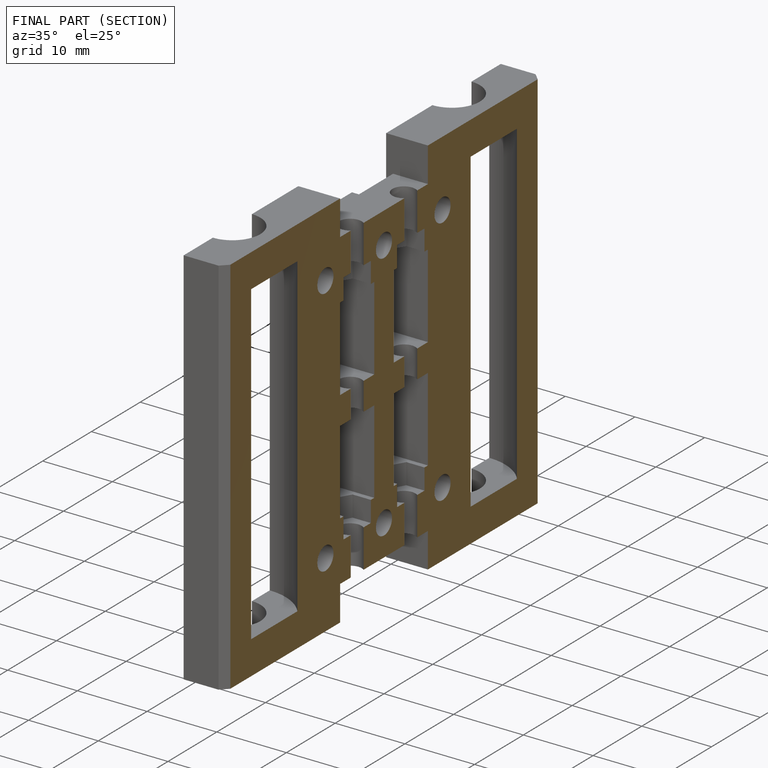
[diagram: finished part — half-section view (interior)]
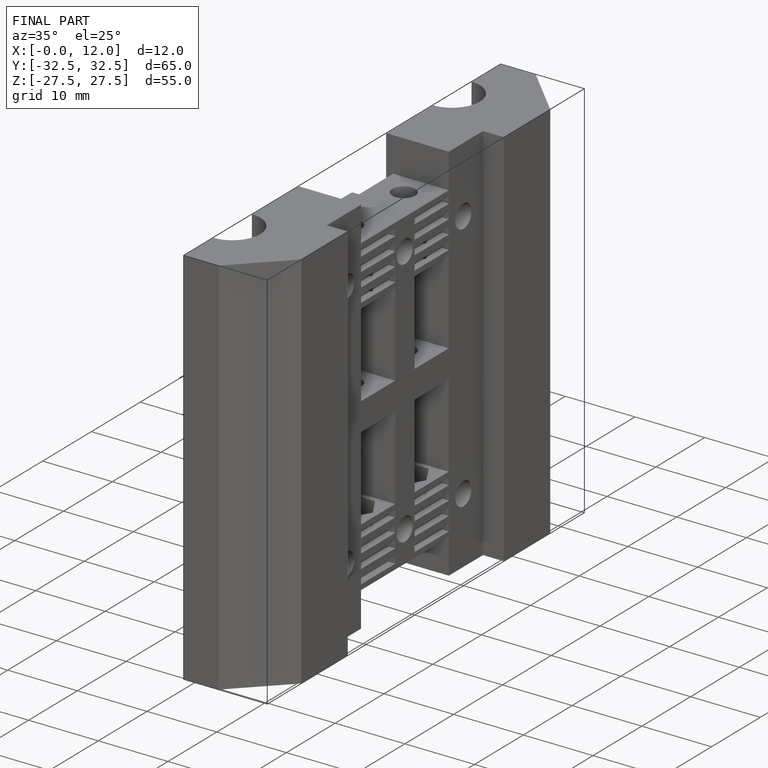
[diagram: finished part — iso view with bounding-box wireframe]
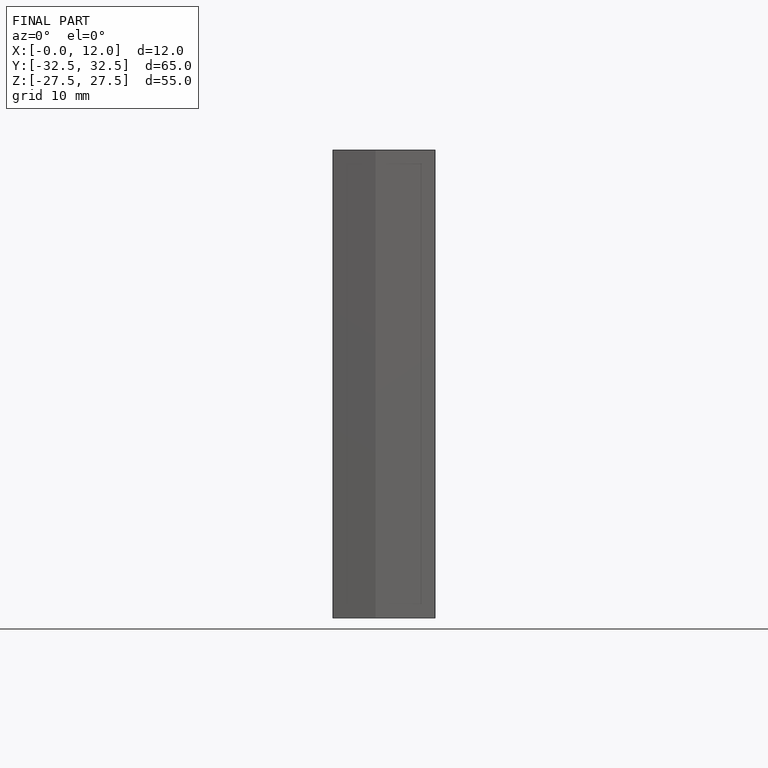
[diagram: finished part — front view with bounding-box wireframe]
